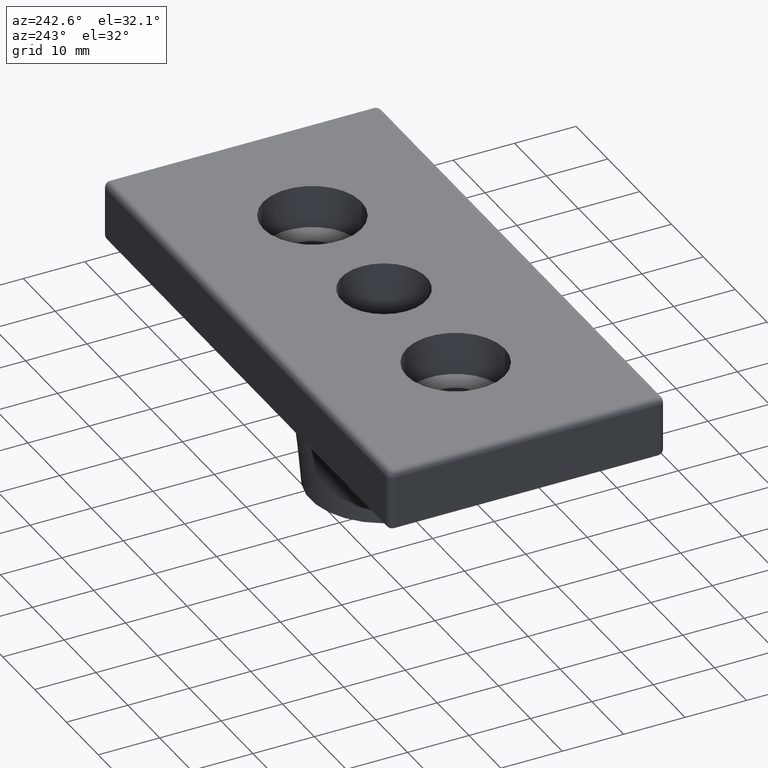
[diagram: clean part render]
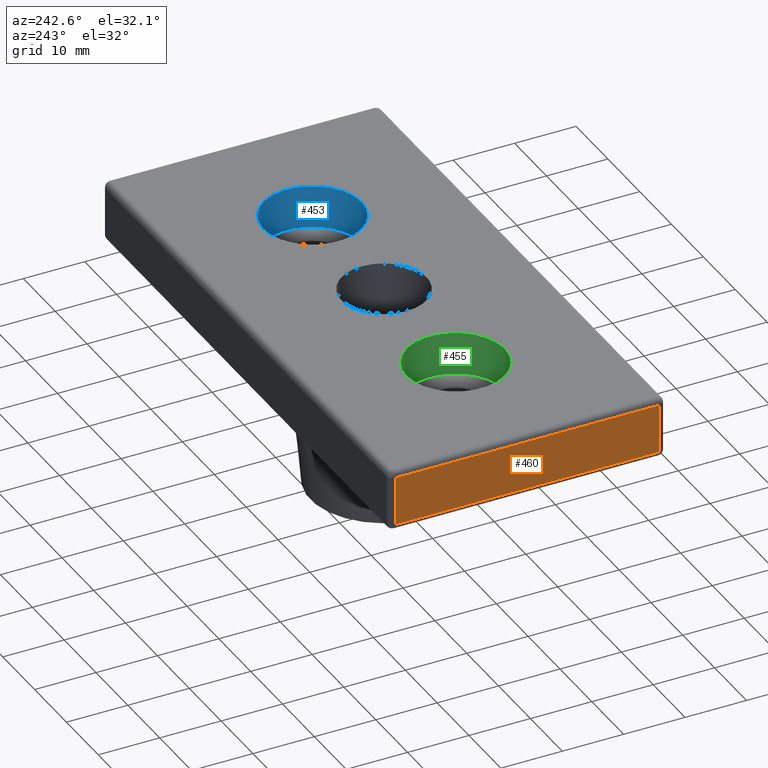
[diagram: same view with three faces highlighted in distinct colors, each labeled with its STEP entity id]
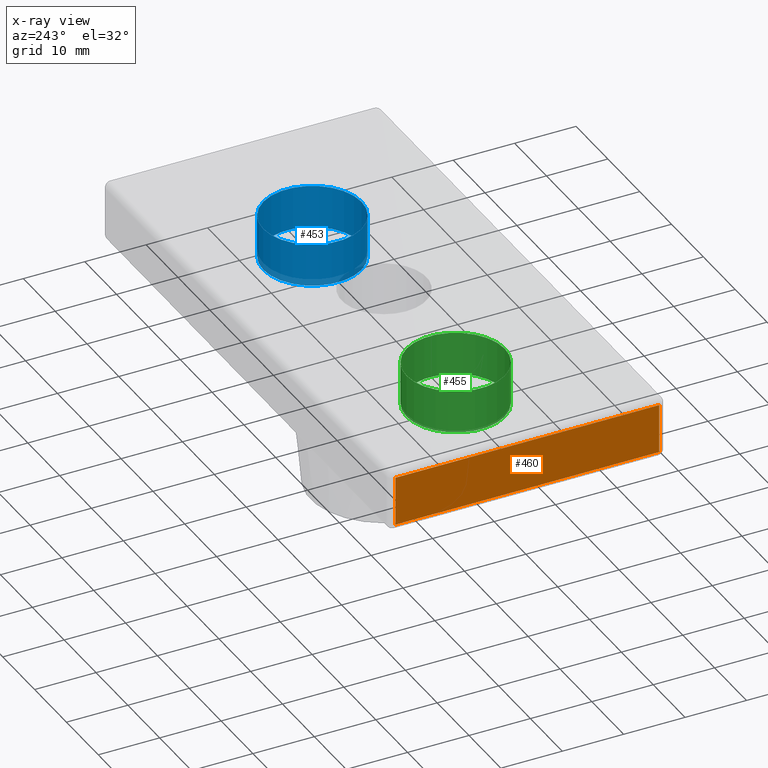
[diagram: x-ray of the same camera — body ghosted, the three highlighted faces saturated]
A machine part, auxiliary view with three faces highlighted in distinct colors.
The next image is the same camera in x-ray (body ghosted, the three faces saturated) — at least one of them is partly hidden behind the body in this view.
Their STEP definitions:

[orange] entity #460 — the highlighted planar face has unit normal (-1, 0, 0).
#35=LINE('',#788,#59);
#36=LINE('',#790,#60);
#37=LINE('',#792,#61);
#38=LINE('',#793,#62);
#59=VECTOR('',#618,43.);
#60=VECTOR('',#619,8.);
#61=VECTOR('',#620,43.);
#62=VECTOR('',#621,8.);
#76=PLANE('',#509);
#106=FACE_OUTER_BOUND('',#148,.T.);
#148=EDGE_LOOP('',(#339,#340,#341,#342));
#241=VERTEX_POINT('',#786);
#242=VERTEX_POINT('',#787);
#243=VERTEX_POINT('',#789);
#244=VERTEX_POINT('',#791);
#277=EDGE_CURVE('',#241,#242,#35,.T.);
#278=EDGE_CURVE('',#242,#243,#36,.T.);
#279=EDGE_CURVE('',#243,#244,#37,.T.);
#280=EDGE_CURVE('',#244,#241,#38,.T.);
#339=ORIENTED_EDGE('',*,*,#277,.T.);
#340=ORIENTED_EDGE('',*,*,#278,.T.);
#341=ORIENTED_EDGE('',*,*,#279,.T.);
#342=ORIENTED_EDGE('',*,*,#280,.T.);
#460=ADVANCED_FACE('',(#106),#76,.T.);
#509=AXIS2_PLACEMENT_3D('',#785,#616,#617);
#616=DIRECTION('center_axis',(-1.,0.,0.));
#617=DIRECTION('ref_axis',(0.,0.,1.));
#618=DIRECTION('',(0.,-1.,0.));
#619=DIRECTION('',(0.,0.,1.));
#620=DIRECTION('',(0.,1.,0.));
#621=DIRECTION('',(0.,0.,-1.));
#785=CARTESIAN_POINT('Origin',(-89.7071067811865,-23.65,0.307106781186548));
#786=CARTESIAN_POINT('',(-89.7071067811865,21.5,0.707106781186548));
#787=CARTESIAN_POINT('',(-89.7071067811865,-21.5,0.707106781186548));
#788=CARTESIAN_POINT('',(-89.7071067811865,21.5,0.707106781186548));
#789=CARTESIAN_POINT('',(-89.7071067811865,-21.5,8.70710678118655));
#790=CARTESIAN_POINT('',(-89.7071067811865,-21.5,0.707106781186548));
#791=CARTESIAN_POINT('',(-89.7071067811865,21.5,8.70710678118655));
#792=CARTESIAN_POINT('',(-89.7071067811865,-21.5,8.70710678118655));
#793=CARTESIAN_POINT('',(-89.7071067811865,21.5,8.70710678118655));

[blue] entity #453 — the highlighted cylindrical surface (bore or boss wall) has radius 8 mm, axis along (0, 0, -1).
#84=FACE_BOUND('',#138,.T.);
#99=FACE_OUTER_BOUND('',#137,.T.);
#137=EDGE_LOOP('',(#319));
#138=EDGE_LOOP('',(#320));
#185=CIRCLE('',#495,8.);
#186=CIRCLE('',#496,8.);
#221=VERTEX_POINT('',#739);
#222=VERTEX_POINT('',#741);
#257=EDGE_CURVE('',#221,#221,#185,.T.);
#258=EDGE_CURVE('',#222,#222,#186,.T.);
#319=ORIENTED_EDGE('',*,*,#257,.F.);
#320=ORIENTED_EDGE('',*,*,#258,.F.);
#434=CYLINDRICAL_SURFACE('',#494,8.);
#453=ADVANCED_FACE('',(#99,#84),#434,.F.);
#494=AXIS2_PLACEMENT_3D('',#738,#574,#575);
#495=AXIS2_PLACEMENT_3D('',#740,#576,#577);
#496=AXIS2_PLACEMENT_3D('',#742,#578,#579);
#574=DIRECTION('center_axis',(0.,0.,-1.));
#575=DIRECTION('ref_axis',(-1.,0.,0.));
#576=DIRECTION('center_axis',(0.,0.,-1.));
#577=DIRECTION('ref_axis',(0.,-1.,0.));
#578=DIRECTION('center_axis',(0.,0.,1.));
#579=DIRECTION('ref_axis',(0.,-1.,0.));
#738=CARTESIAN_POINT('Origin',(-22.2071067811865,0.,9.70710679118655));
#739=CARTESIAN_POINT('',(-22.2071067811865,-8.,9.70710678118655));
#740=CARTESIAN_POINT('Origin',(-22.2071067811865,0.,9.70710678118655));
#741=CARTESIAN_POINT('',(-22.2071067811865,-8.,2.70710678118655));
#742=CARTESIAN_POINT('Origin',(-22.2071067811865,0.,2.70710678118655));

[green] entity #455 — the highlighted cylindrical surface (bore or boss wall) has radius 8 mm, axis along (0, 0, -1).
#86=FACE_BOUND('',#142,.T.);
#101=FACE_OUTER_BOUND('',#141,.T.);
#141=EDGE_LOOP('',(#323));
#142=EDGE_LOOP('',(#324));
#189=CIRCLE('',#501,8.);
#190=CIRCLE('',#502,8.);
#225=VERTEX_POINT('',#749);
#226=VERTEX_POINT('',#751);
#261=EDGE_CURVE('',#225,#225,#189,.T.);
#262=EDGE_CURVE('',#226,#226,#190,.T.);
#323=ORIENTED_EDGE('',*,*,#261,.F.);
#324=ORIENTED_EDGE('',*,*,#262,.F.);
#436=CYLINDRICAL_SURFACE('',#500,8.);
#455=ADVANCED_FACE('',(#101,#86),#436,.F.);
#500=AXIS2_PLACEMENT_3D('',#748,#586,#587);
#501=AXIS2_PLACEMENT_3D('',#750,#588,#589);
#502=AXIS2_PLACEMENT_3D('',#752,#590,#591);
#586=DIRECTION('center_axis',(0.,0.,-1.));
#587=DIRECTION('ref_axis',(-1.,0.,0.));
#588=DIRECTION('center_axis',(0.,0.,-1.));
#589=DIRECTION('ref_axis',(0.,-1.,0.));
#590=DIRECTION('center_axis',(0.,0.,1.));
#591=DIRECTION('ref_axis',(0.,-1.,0.));
#748=CARTESIAN_POINT('Origin',(-67.2071067811865,0.,9.70710679118655));
#749=CARTESIAN_POINT('',(-67.2071067811865,-8.,9.70710678118655));
#750=CARTESIAN_POINT('Origin',(-67.2071067811865,0.,9.70710678118655));
#751=CARTESIAN_POINT('',(-67.2071067811865,-8.,2.70710678118655));
#752=CARTESIAN_POINT('Origin',(-67.2071067811865,0.,2.70710678118655));